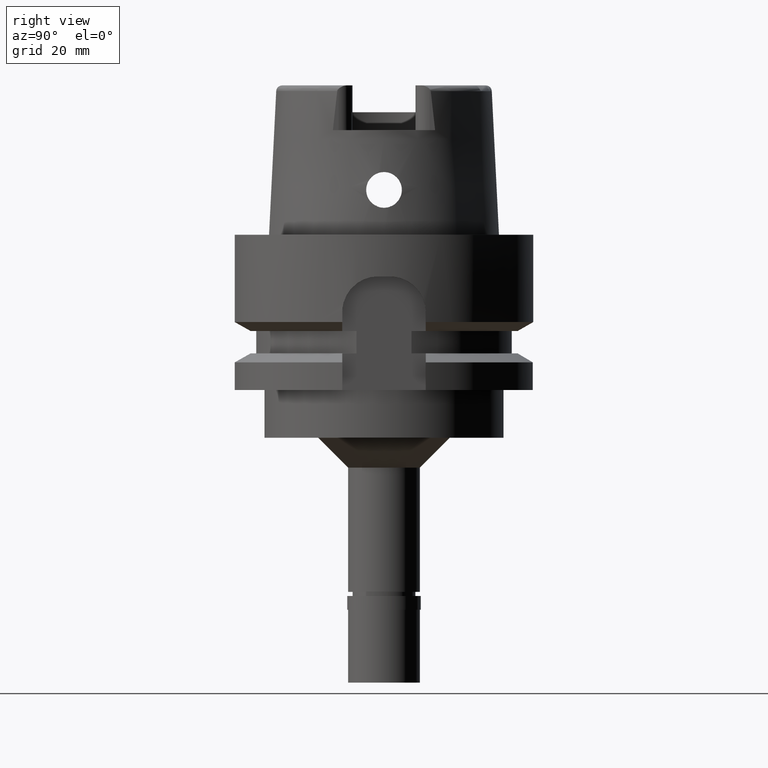
[diagram: clean part render]
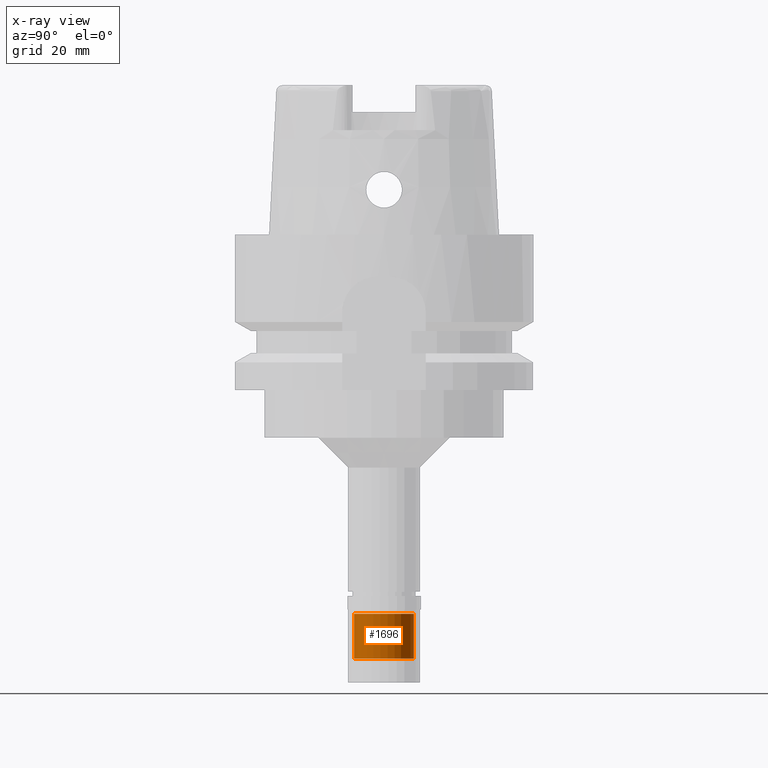
[diagram: x-ray — body ghosted, one internal face saturated and labeled with its STEP entity id]
A machine part, right view, then the same camera in x-ray: the body is ghosted and one INTERNAL B-rep face — a face not visible from any outside direction — is saturated and labeled: STEP entity #1696.
In plain terms, the highlighted cylindrical surface (edge-blend (fillet) strip) has radius 5 mm, axis along (0, 0, 1).
Its self-contained STEP definition (entity closure, byte-faithful):
#138 = ORIENTED_EDGE ( 'NONE', *, *, #2626, .F. ) ;
#193 = ORIENTED_EDGE ( 'NONE', *, *, #226, .T. ) ;
#226 = EDGE_CURVE ( 'NONE', #2414, #2746, #2282, .T. ) ;
#254 = AXIS2_PLACEMENT_3D ( 'NONE', #1837, #3019, #713 ) ;
#336 = CARTESIAN_POINT ( 'NONE',  ( 0.0000000000000000000, -5.000000000000000000, -63.50000000000000000 ) ) ;
#411 = CARTESIAN_POINT ( 'NONE',  ( 0.0000000000000000000, -5.000000000000000000, -63.50000000000000000 ) ) ;
#468 = LINE ( 'NONE', #3552, #3441 ) ;
#664 = DIRECTION ( 'NONE',  ( 0.0000000000000000000, 0.0000000000000000000, 1.000000000000000000 ) ) ;
#713 = DIRECTION ( 'NONE',  ( 0.0000000000000000000, 1.000000000000000000, 0.0000000000000000000 ) ) ;
#946 = CARTESIAN_POINT ( 'NONE',  ( 0.0000000000000000000, 5.000000000000000000, -71.00000000000000000 ) ) ;
#1114 = ORIENTED_EDGE ( 'NONE', *, *, #2167, .T. ) ;
#1127 = CARTESIAN_POINT ( 'NONE',  ( 0.0000000000000000000, 5.000000000000000000, -63.50000000000000000 ) ) ;
#1186 = VECTOR ( 'NONE', #4679, 1000.000000000000000 ) ;
#1253 = FACE_OUTER_BOUND ( 'NONE', #2281, .T. ) ;
#1500 = DIRECTION ( 'NONE',  ( 0.0000000000000000000, 0.0000000000000000000, 1.000000000000000000 ) ) ;
#1669 = CYLINDRICAL_SURFACE ( 'NONE', #3478, 5.000000000000000000 ) ;
#1696 = ADVANCED_FACE ( 'NONE', ( #1253 ), #1669, .T. ) ;
#1717 = EDGE_CURVE ( 'NONE', #2746, #1916, #3183, .T. ) ;
#1837 = CARTESIAN_POINT ( 'NONE',  ( 0.0000000000000000000, 0.0000000000000000000, -63.50000000000000000 ) ) ;
#1916 = VERTEX_POINT ( 'NONE', #2133 ) ;
#2015 = CARTESIAN_POINT ( 'NONE',  ( 0.0000000000000000000, 0.0000000000000000000, -75.80000000000001137 ) ) ;
#2102 = CARTESIAN_POINT ( 'NONE',  ( 0.0000000000000000000, 0.0000000000000000000, -71.00000000000000000 ) ) ;
#2133 = CARTESIAN_POINT ( 'NONE',  ( 0.0000000000000000000, -5.000000000000000000, -71.00000000000000000 ) ) ;
#2167 = EDGE_CURVE ( 'NONE', #1916, #4454, #2470, .T. ) ;
#2281 = EDGE_LOOP ( 'NONE', ( #193, #4384, #1114, #138 ) ) ;
#2282 = CIRCLE ( 'NONE', #254, 5.000000000000000000 ) ;
#2368 = DIRECTION ( 'NONE',  ( 0.0000000000000000000, 0.0000000000000000000, -1.000000000000000000 ) ) ;
#2414 = VERTEX_POINT ( 'NONE', #1127 ) ;
#2424 = DIRECTION ( 'NONE',  ( 0.0000000000000000000, -1.000000000000000000, 0.0000000000000000000 ) ) ;
#2470 = CIRCLE ( 'NONE', #3436, 5.000000000000000000 ) ;
#2626 = EDGE_CURVE ( 'NONE', #2414, #4454, #468, .T. ) ;
#2746 = VERTEX_POINT ( 'NONE', #336 ) ;
#3019 = DIRECTION ( 'NONE',  ( 0.0000000000000000000, 0.0000000000000000000, -1.000000000000000000 ) ) ;
#3159 = DIRECTION ( 'NONE',  ( 0.0000000000000000000, 1.000000000000000000, 0.0000000000000000000 ) ) ;
#3183 = LINE ( 'NONE', #411, #1186 ) ;
#3436 = AXIS2_PLACEMENT_3D ( 'NONE', #2102, #664, #2424 ) ;
#3441 = VECTOR ( 'NONE', #2368, 1000.000000000000000 ) ;
#3478 = AXIS2_PLACEMENT_3D ( 'NONE', #2015, #1500, #3159 ) ;
#3552 = CARTESIAN_POINT ( 'NONE',  ( 0.0000000000000000000, 5.000000000000000000, -63.50000000000000000 ) ) ;
#4384 = ORIENTED_EDGE ( 'NONE', *, *, #1717, .T. ) ;
#4454 = VERTEX_POINT ( 'NONE', #946 ) ;
#4679 = DIRECTION ( 'NONE',  ( 0.0000000000000000000, 0.0000000000000000000, -1.000000000000000000 ) ) ;